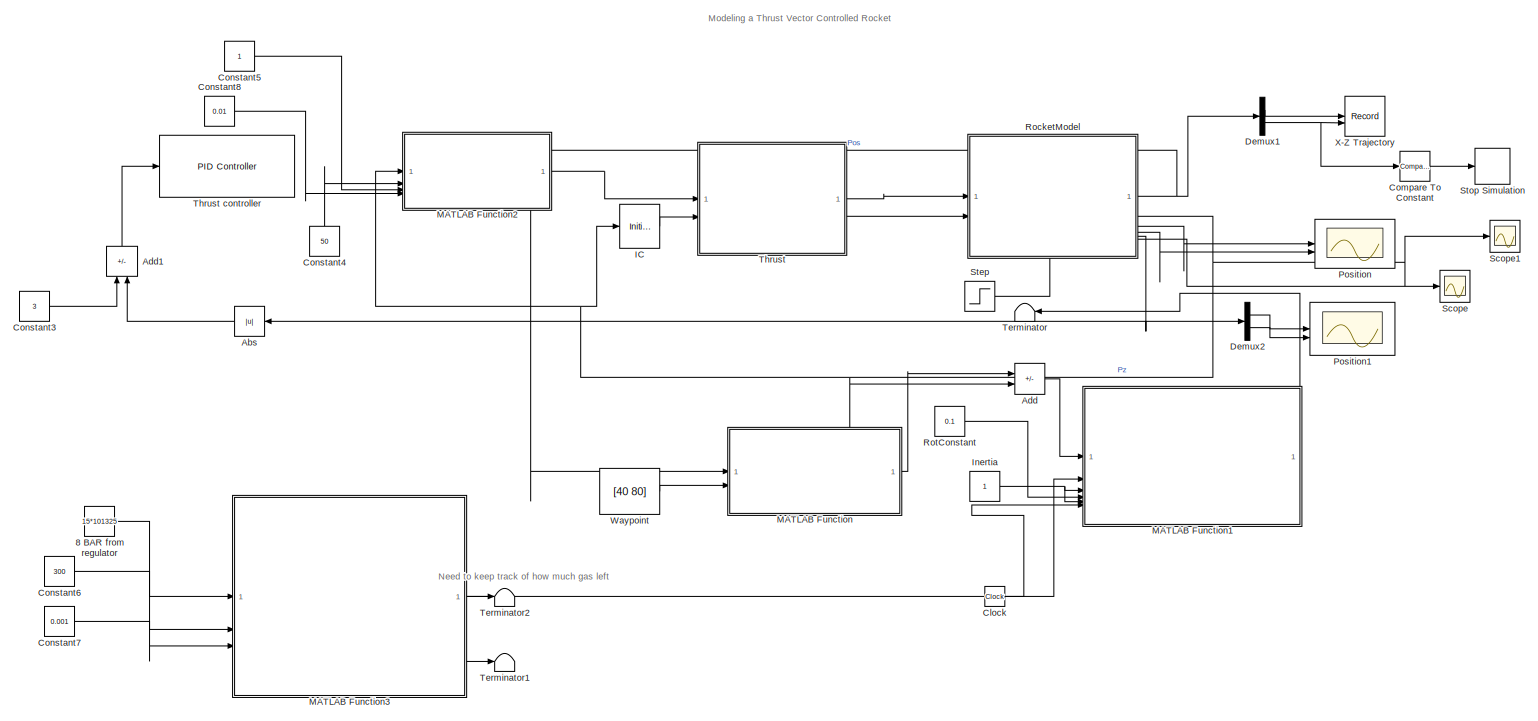
[diagram: root canvas - part 1/2, top center region]
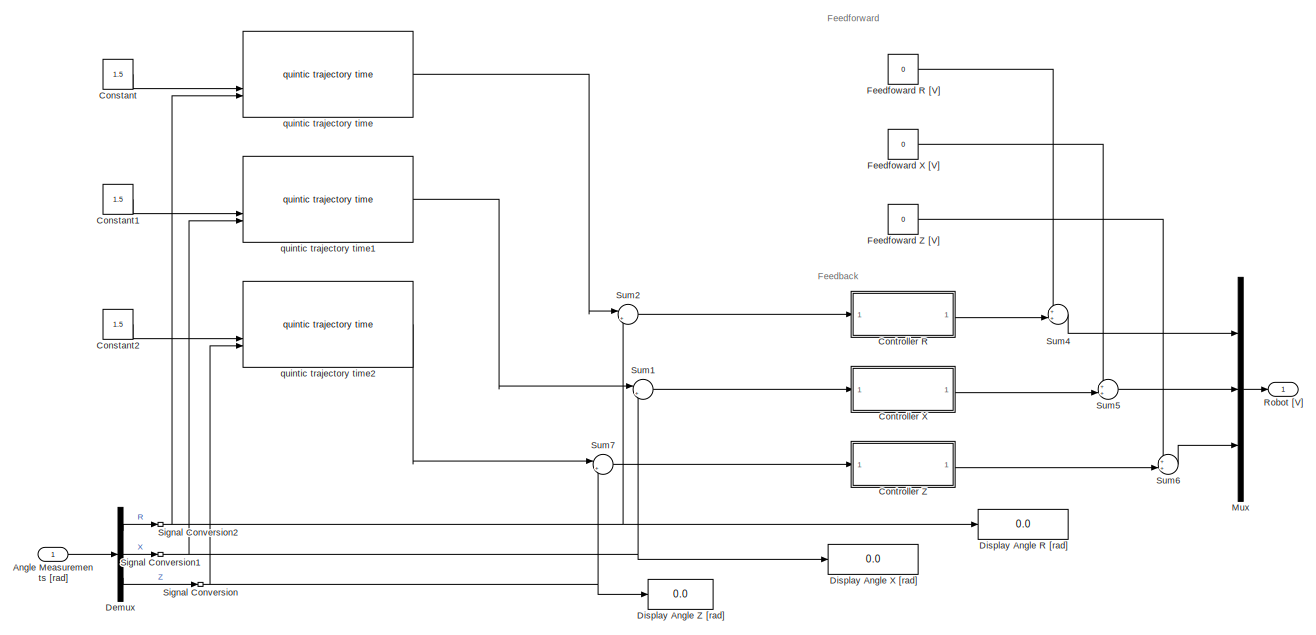
[diagram: root canvas - part 2/2, bottom right region]
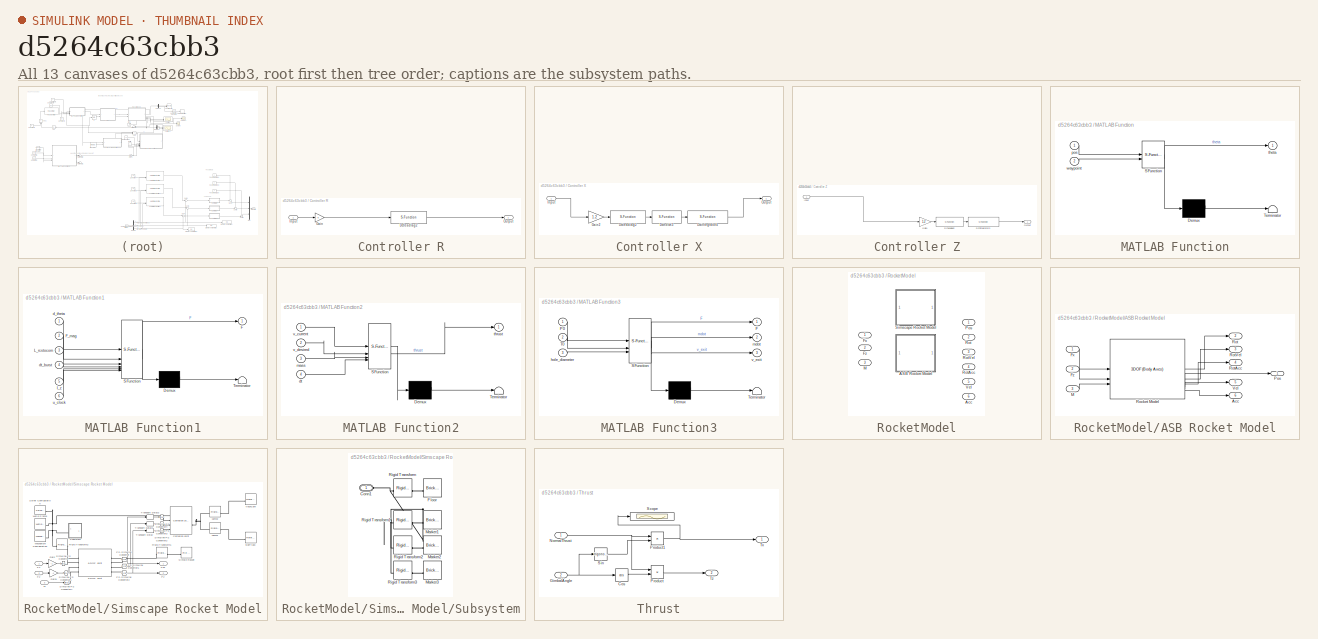
[diagram: thumbnail index - all 13 canvases of the model, root first then tree order]
MODEL slx_d5264c63cbb3
KIND model
CONFIG AbsTol = auto
CONFIG EnableMultiTasking = off
CONFIG FixedStep = auto
CONFIG MaxStep = auto
CONFIG MinStep = auto
CONFIG PostLoadFcn = VSS_MODE = 0;
CONFIG RelTol = 1e-3
CONFIG SampleTimeConstraint = Unconstrained
CONFIG SolverName = ode45
CONFIG StartTime = 0.0
CONFIG StopTime = 15
BLOCK [Constant] 8 BAR from regulator
  Value = 15*101325
BLOCK [Abs] Abs
  Commented = on
  NameLocation = top
  SaturateOnIntegerOverflow = off
BLOCK [Sum] Add
  IconShape = rectangular
  Inputs = +-
BLOCK [Sum] Add1
  Commented = on
  IconShape = rectangular
  Inputs = +-
  NameLocation = right
BLOCK [Inport] Angle Measurements [rad]
BLOCK [Clock] Clock
BLOCK [Reference] Compare To Constant  REF=simulink/Logic and Bit
Operations/Compare
To Constant
  SourceBlock = simulink/Logic and Bit\nOperations/Compare\nTo Constant
  SourceType = Compare To Constant
BLOCK [Constant] Constant
  Commented = on
  Value = 1.5
BLOCK [Constant] Constant1
  Commented = on
  Value = 1.5
BLOCK [Constant] Constant2
  Commented = on
  Value = 1.5
BLOCK [Constant] Constant3
  Commented = on
  Value = 3
BLOCK [Constant] Constant4
  NameLocation = right
  Value = 50
BLOCK [Constant] Constant5
BLOCK [Constant] Constant6
  Value = 300
BLOCK [Constant] Constant7
  Value = 0.001
BLOCK [Constant] Constant8
  Value = 0.01
BLOCK [SubSystem] Controller R
  Commented = on
BLOCK [S-Function] Controller R/Dctleadlag2
  EnableBusSupport = off
  FunctionName = dleadlag
  Parameters = f_num, f_den, 0.001
  SFcnIsStateOwnerBlock = off
  SFunctionDeploymentMode = off
BLOCK [Gain] Controller R/Gain
  Gain = 5
BLOCK [Inport] Controller R/Input
BLOCK [Outport] Controller R/Output
BLOCK [SubSystem] Controller X
  Commented = on
BLOCK [S-Function] Controller X/Dctintegrator4
  EnableBusSupport = off
  FunctionName = dweakint
  Parameters = f_num, 0.001
  SFcnIsStateOwnerBlock = off
  SFunctionDeploymentMode = off
BLOCK [S-Function] Controller X/Dctleadlag2
  EnableBusSupport = off
  FunctionName = dleadlag
  Parameters = f_num, f_den, 0.001
  SFcnIsStateOwnerBlock = off
  SFunctionDeploymentMode = off
BLOCK [S-Function] Controller X/Dctnotch3
  EnableBusSupport = off
  FunctionName = dnotch
  Parameters = f_num, b_num, f_den, b_den, 0.001
  SFcnIsStateOwnerBlock = off
  SFunctionDeploymentMode = off
BLOCK [Gain] Controller X/Gain2
  Gain = 1.2
BLOCK [Inport] Controller X/Input
BLOCK [Outport] Controller X/Output
BLOCK [SubSystem] Controller Z
  Commented = on
BLOCK [S-Function] Controller Z/Dctintegrator3
  EnableBusSupport = off
  FunctionName = dweakint
  Parameters = f_num, 0.001
  SFcnIsStateOwnerBlock = off
  SFunctionDeploymentMode = off
BLOCK [S-Function] Controller Z/Dctleadlag2
  EnableBusSupport = off
  FunctionName = dleadlag
  Parameters = f_num, f_den, 0.001
  SFcnIsStateOwnerBlock = off
  SFunctionDeploymentMode = off
BLOCK [Gain] Controller Z/Gain1
  Gain = 1.2
BLOCK [Inport] Controller Z/Input
BLOCK [Outport] Controller Z/Output
BLOCK [Demux] Demux
  Commented = on
  Outputs = 3
BLOCK [Demux] Demux1
  Outputs = 2
BLOCK [Demux] Demux2
  Outputs = 2
BLOCK [Display] Display Angle R [rad]
  Commented = on
  Decimation = 1
BLOCK [Display] Display Angle X [rad]
  Commented = on
  Decimation = 1
BLOCK [Display] Display Angle Z [rad]
  Commented = on
  Decimation = 1
BLOCK [Constant] Feedfoward R [V]
  Commented = on
  Value = 0
BLOCK [Constant] Feedfoward X [V]
  Commented = on
  Value = 0
BLOCK [Constant] Feedfoward Z [V]
  Commented = on
  Value = 0
BLOCK [InitialCondition] IC
  Value = pi/2
BLOCK [Constant] Inertia
BLOCK [SubSystem] MATLAB Function
  ErrorFcn = Stateflow.Translate.translate
  PermitHierarchicalResolution = ExplicitOnly
  SFBlockType = MATLAB Function
  TreatAsAtomicUnit = on
BLOCK [Demux] MATLAB Function/ Demux 
  Outputs = 1
BLOCK [S-Function] MATLAB Function/ SFunction 
  EnableBusSupport = on
  FunctionName = sf_sfun
  PortCounts = [2 2]
  SFcnIsStateOwnerBlock = off
  SFunctionDeploymentMode = off
  Tag = Stateflow S-Function 2
BLOCK [Terminator] MATLAB Function/ Terminator 
BLOCK [Inport] MATLAB Function/pos
BLOCK [Outport] MATLAB Function/theta
BLOCK [Inport] MATLAB Function/waypoint
  Port = 2
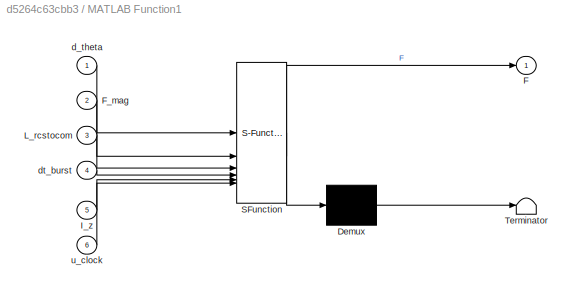
BLOCK [SubSystem] MATLAB Function1
  ErrorFcn = Stateflow.Translate.translate
  PermitHierarchicalResolution = ExplicitOnly
  SFBlockType = MATLAB Function
  TreatAsAtomicUnit = on
BLOCK [Demux] MATLAB Function1/ Demux 
  Outputs = 1
BLOCK [S-Function] MATLAB Function1/ SFunction 
  EnableBusSupport = on
  FunctionName = sf_sfun
  PortCounts = [6 2]
  SFcnIsStateOwnerBlock = off
  SFunctionDeploymentMode = off
  Tag = Stateflow S-Function 1
BLOCK [Terminator] MATLAB Function1/ Terminator 
BLOCK [Outport] MATLAB Function1/F
BLOCK [Inport] MATLAB Function1/F_mag
  Port = 2
BLOCK [Inport] MATLAB Function1/I_z
  Port = 5
BLOCK [Inport] MATLAB Function1/L_rcstocom
  Port = 3
BLOCK [Inport] MATLAB Function1/d_theta
BLOCK [Inport] MATLAB Function1/dt_burst
  Port = 4
BLOCK [Inport] MATLAB Function1/u_clock
  Port = 6
BLOCK [SubSystem] MATLAB Function2
  ErrorFcn = Stateflow.Translate.translate
  PermitHierarchicalResolution = ExplicitOnly
  SFBlockType = MATLAB Function
  TreatAsAtomicUnit = on
BLOCK [Demux] MATLAB Function2/ Demux 
  Outputs = 1
BLOCK [S-Function] MATLAB Function2/ SFunction 
  EnableBusSupport = on
  FunctionName = sf_sfun
  PortCounts = [4 2]
  SFcnIsStateOwnerBlock = off
  SFunctionDeploymentMode = off
  Tag = Stateflow S-Function 3
BLOCK [Terminator] MATLAB Function2/ Terminator 
BLOCK [Inport] MATLAB Function2/dt
  Port = 4
BLOCK [Inport] MATLAB Function2/mass
  Port = 3
BLOCK [Outport] MATLAB Function2/thrust
BLOCK [Inport] MATLAB Function2/v_current
BLOCK [Inport] MATLAB Function2/v_desired
  Port = 2
BLOCK [SubSystem] MATLAB Function3
  ErrorFcn = Stateflow.Translate.translate
  PermitHierarchicalResolution = ExplicitOnly
  SFBlockType = MATLAB Function
  TreatAsAtomicUnit = on
BLOCK [Demux] MATLAB Function3/ Demux 
  Outputs = 1
BLOCK [S-Function] MATLAB Function3/ SFunction 
  EnableBusSupport = on
  FunctionName = sf_sfun
  PortCounts = [3 4]
  SFcnIsStateOwnerBlock = off
  SFunctionDeploymentMode = off
  Tag = Stateflow S-Function 4
BLOCK [Terminator] MATLAB Function3/ Terminator 
BLOCK [Outport] MATLAB Function3/F
BLOCK [Inport] MATLAB Function3/P0
BLOCK [Inport] MATLAB Function3/T0
  Port = 2
BLOCK [Inport] MATLAB Function3/hole_diameter
  Port = 3
BLOCK [Outport] MATLAB Function3/mdot
  Port = 2
BLOCK [Outport] MATLAB Function3/v_exit
  Port = 3
BLOCK [Mux] Mux
  Commented = on
  DisplayOption = bar
  Inputs = 3
BLOCK [Scope] Position
  Floating = off
  NumInputPorts = 2
  ScopeSpecificationString = Simulink.scopes.TimeScopeBlockCfg('CurrentConfiguration', extmgr.ConfigurationSet(extmgr.Configuration('Core','General UI',true),extmgr.Configuration('Core','Source UI',true),extmgr.Configuration('Sources','WiredSimulink',true,'DataLoggingVariableName','ScopeData2'),extmgr.Configuration('Visuals','Time Domain',true,'SerializedDisplays',{struct('MinYLimReal','-0.0001','MaxYLimReal','0.00008','YLabe...<+2278ch>
BLOCK [Scope] Position1
  Floating = off
  NumInputPorts = 2
  ScopeSpecificationString = Simulink.scopes.TimeScopeBlockCfg('CurrentConfiguration', extmgr.ConfigurationSet(extmgr.Configuration('Core','General UI',true),extmgr.Configuration('Core','Source UI',true),extmgr.Configuration('Sources','WiredSimulink',true,'DataLoggingVariableName','ScopeData1'),extmgr.Configuration('Visuals','Time Domain',true,'SerializedDisplays',{struct('MinYLimReal','3.17506','MaxYLimReal','20.52335','YLab...<+2290ch>
BLOCK [Outport] Robot [V]
BLOCK [SubSystem] RocketModel
  PortSchema = {"entries":[{"content":{"sides":[{"content":{"connectorIds":["In1","In2"]},"type":"ConnectorPlacement.EquallySpacedRectSide","uuid":"39ccef9b-7d5c-4c88-8027-880c81cd9dcd"},{"content":{"connectorIds":["Out1","Out2","Out3","Out4","Out5","Out6"],"side":"RIGHT"},"type":"ConnectorPlacement.EquallySpacedRectSide","uuid":"1b4ade83-027d-4360-a7ba-fa0c14802a25"},{"content":{"side":"TOP"},"type":"ConnectorP...<+412ch>
  Variant = on
BLOCK [SubSystem] RocketModel/ASB Rocket Model
  VariantControl = VSS_MODE == 0
BLOCK [Outport] RocketModel/ASB Rocket Model/Acc
  Port = 6
BLOCK [Inport] RocketModel/ASB Rocket Model/Fx
BLOCK [Inport] RocketModel/ASB Rocket Model/Fz
  Port = 2
BLOCK [Inport] RocketModel/ASB Rocket Model/M
  Port = 3
BLOCK [Outport] RocketModel/ASB Rocket Model/Pos
BLOCK [Reference] RocketModel/ASB Rocket Model/Rocket Model  REF=shared3dof/3DOF (Body Axes)
  SourceBlock = shared3dof/3DOF (Body Axes)
  SourceType = 3DOF EoM
BLOCK [Outport] RocketModel/ASB Rocket Model/Rot
  Port = 2
BLOCK [Outport] RocketModel/ASB Rocket Model/RotAcc
  Port = 4
BLOCK [Outport] RocketModel/ASB Rocket Model/RotVel
  Port = 3
BLOCK [Outport] RocketModel/ASB Rocket Model/Vel
  Port = 5
BLOCK [Outport] RocketModel/Acc
  Port = 6
BLOCK [Inport] RocketModel/Fx 
BLOCK [Inport] RocketModel/Fz
  Port = 2
BLOCK [Inport] RocketModel/M
  Port = 3
BLOCK [Outport] RocketModel/Pos
BLOCK [Outport] RocketModel/Rot
  Port = 2
BLOCK [Outport] RocketModel/RotAcc
  Port = 4
BLOCK [Outport] RocketModel/RotVel
  Port = 3
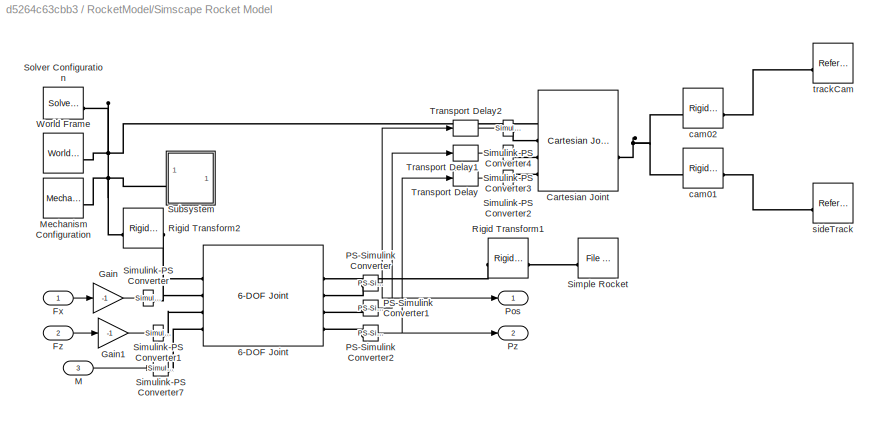
BLOCK [SubSystem] RocketModel/Simscape Rocket Model
  VariantControl = VSS_MODE == 1
BLOCK [Reference] RocketModel/Simscape Rocket Model/6-DOF Joint  REF=sm_lib/Joints/6-DOF Joint
  SourceBlock = sm_lib/Joints/6-DOF Joint
  SourceType = 6-DOF Joint
BLOCK [Reference] RocketModel/Simscape Rocket Model/Cartesian Joint  REF=sm_lib/Joints/Cartesian
Joint
  SourceBlock = sm_lib/Joints/Cartesian\nJoint
  SourceType = Cartesian\nJoint
BLOCK [Inport] RocketModel/Simscape Rocket Model/Fx
BLOCK [Inport] RocketModel/Simscape Rocket Model/Fz
  Port = 2
BLOCK [Gain] RocketModel/Simscape Rocket Model/Gain
  Gain = -1
BLOCK [Gain] RocketModel/Simscape Rocket Model/Gain1
  Gain = -1
BLOCK [Inport] RocketModel/Simscape Rocket Model/M
  Port = 3
BLOCK [Reference] RocketModel/Simscape Rocket Model/Mechanism Configuration  REF=sm_lib/Utilities/Mechanism
Configuration
  SourceBlock = sm_lib/Utilities/Mechanism\nConfiguration
  SourceType = Mechanism\nConfiguration
BLOCK [Reference] RocketModel/Simscape Rocket Model/PS-Simulink Converter  REF=nesl_utility/PS-Simulink
Converter
  SourceBlock = nesl_utility/PS-Simulink\nConverter
  SourceType = PS-Simulink\nConverter
BLOCK [Reference] RocketModel/Simscape Rocket Model/PS-Simulink Converter1  REF=nesl_utility/PS-Simulink
Converter
  SourceBlock = nesl_utility/PS-Simulink\nConverter
  SourceType = PS-Simulink\nConverter
BLOCK [Reference] RocketModel/Simscape Rocket Model/PS-Simulink Converter2  REF=nesl_utility/PS-Simulink
Converter
  SourceBlock = nesl_utility/PS-Simulink\nConverter
  SourceType = PS-Simulink\nConverter
BLOCK [Outport] RocketModel/Simscape Rocket Model/Pos
BLOCK [Outport] RocketModel/Simscape Rocket Model/Pz
  Port = 2
BLOCK [Reference] RocketModel/Simscape Rocket Model/Rigid Transform1  REF=sm_lib/Frames and
Transforms/Rigid
Transform
  NameLocation = top
  SourceBlock = sm_lib/Frames and\nTransforms/Rigid\nTransform
  SourceType = Rigid\nTransform
BLOCK [Reference] RocketModel/Simscape Rocket Model/Rigid Transform2  REF=sm_lib/Frames and
Transforms/Rigid
Transform
  NameLocation = top
  SourceBlock = sm_lib/Frames and\nTransforms/Rigid\nTransform
  SourceType = Rigid\nTransform
BLOCK [Reference] RocketModel/Simscape Rocket Model/Simple Rocket  REF=sm_lib/Body Elements/File Solid
  NameLocation = top
  SourceBlock = sm_lib/Body Elements/File Solid
  SourceType = File Solid
BLOCK [Reference] RocketModel/Simscape Rocket Model/Simulink-PS Converter  REF=nesl_utility/Simulink-PS
Converter
  SourceBlock = nesl_utility/Simulink-PS\nConverter
  SourceType = Simulink-PS\nConverter
BLOCK [Reference] RocketModel/Simscape Rocket Model/Simulink-PS Converter1  REF=nesl_utility/Simulink-PS
Converter
  SourceBlock = nesl_utility/Simulink-PS\nConverter
  SourceType = Simulink-PS\nConverter
BLOCK [Reference] RocketModel/Simscape Rocket Model/Simulink-PS Converter2  REF=nesl_utility/Simulink-PS
Converter
  SourceBlock = nesl_utility/Simulink-PS\nConverter
  SourceType = Simulink-PS\nConverter
BLOCK [Reference] RocketModel/Simscape Rocket Model/Simulink-PS Converter3  REF=nesl_utility/Simulink-PS
Converter
  SourceBlock = nesl_utility/Simulink-PS\nConverter
  SourceType = Simulink-PS\nConverter
BLOCK [Reference] RocketModel/Simscape Rocket Model/Simulink-PS Converter4  REF=nesl_utility/Simulink-PS
Converter
  SourceBlock = nesl_utility/Simulink-PS\nConverter
  SourceType = Simulink-PS\nConverter
BLOCK [Reference] RocketModel/Simscape Rocket Model/Simulink-PS Converter7  REF=nesl_utility/Simulink-PS
Converter
  SourceBlock = nesl_utility/Simulink-PS\nConverter
  SourceType = Simulink-PS\nConverter
BLOCK [Reference] RocketModel/Simscape Rocket Model/Solver Configuration  REF=nesl_utility/Solver
Configuration
  SourceBlock = nesl_utility/Solver\nConfiguration
  SourceType = Solver\nConfiguration
BLOCK [SubSystem] RocketModel/Simscape Rocket Model/Subsystem
BLOCK [PMIOPort] RocketModel/Simscape Rocket Model/Subsystem/Conn1
  Side = Left
BLOCK [Reference] RocketModel/Simscape Rocket Model/Subsystem/Floor  REF=sm_lib/Body Elements/Brick Solid
  NameLocation = top
  SourceBlock = sm_lib/Body Elements/Brick Solid
  SourceType = Brick Solid
BLOCK [Reference] RocketModel/Simscape Rocket Model/Subsystem/Marker1  REF=sm_lib/Body Elements/Brick Solid
  NameLocation = top
  SourceBlock = sm_lib/Body Elements/Brick Solid
  SourceType = Brick Solid
BLOCK [Reference] RocketModel/Simscape Rocket Model/Subsystem/Marker2  REF=sm_lib/Body Elements/Brick Solid
  NameLocation = top
  SourceBlock = sm_lib/Body Elements/Brick Solid
  SourceType = Brick Solid
BLOCK [Reference] RocketModel/Simscape Rocket Model/Subsystem/Marker3  REF=sm_lib/Body Elements/Brick Solid
  NameLocation = top
  SourceBlock = sm_lib/Body Elements/Brick Solid
  SourceType = Brick Solid
BLOCK [Reference] RocketModel/Simscape Rocket Model/Subsystem/Rigid Transform  REF=sm_lib/Frames and
Transforms/Rigid
Transform
  SourceBlock = sm_lib/Frames and\nTransforms/Rigid\nTransform
  SourceType = Rigid\nTransform
BLOCK [Reference] RocketModel/Simscape Rocket Model/Subsystem/Rigid Transform1  REF=sm_lib/Frames and
Transforms/Rigid
Transform
  SourceBlock = sm_lib/Frames and\nTransforms/Rigid\nTransform
  SourceType = Rigid\nTransform
BLOCK [Reference] RocketModel/Simscape Rocket Model/Subsystem/Rigid Transform2  REF=sm_lib/Frames and
Transforms/Rigid
Transform
  SourceBlock = sm_lib/Frames and\nTransforms/Rigid\nTransform
  SourceType = Rigid\nTransform
BLOCK [Reference] RocketModel/Simscape Rocket Model/Subsystem/Rigid Transform3  REF=sm_lib/Frames and
Transforms/Rigid
Transform
  SourceBlock = sm_lib/Frames and\nTransforms/Rigid\nTransform
  SourceType = Rigid\nTransform
BLOCK [TransportDelay] RocketModel/Simscape Rocket Model/Transport Delay
  BufferSize = 100
  DelayTime = 0.01
BLOCK [TransportDelay] RocketModel/Simscape Rocket Model/Transport Delay1
  BufferSize = 100
  DelayTime = 0.01
BLOCK [TransportDelay] RocketModel/Simscape Rocket Model/Transport Delay2
  BufferSize = 100
  DelayTime = 0.01
BLOCK [Reference] RocketModel/Simscape Rocket Model/World Frame  REF=sm_lib/Frames and
Transforms/World Frame
  SourceBlock = sm_lib/Frames and\nTransforms/World Frame
  SourceType = World Frame
BLOCK [Reference] RocketModel/Simscape Rocket Model/cam01  REF=sm_lib/Frames and
Transforms/Rigid
Transform
  SourceBlock = sm_lib/Frames and\nTransforms/Rigid\nTransform
  SourceType = Rigid\nTransform
BLOCK [Reference] RocketModel/Simscape Rocket Model/cam02  REF=sm_lib/Frames and
Transforms/Rigid
Transform
  SourceBlock = sm_lib/Frames and\nTransforms/Rigid\nTransform
  SourceType = Rigid\nTransform
BLOCK [Reference] RocketModel/Simscape Rocket Model/sideTrack  REF=sm_lib/Frames and
Transforms/Reference
Frame
  SourceBlock = sm_lib/Frames and\nTransforms/Reference\nFrame
  SourceType = Reference\nFrame
BLOCK [Reference] RocketModel/Simscape Rocket Model/trackCam  REF=sm_lib/Frames and
Transforms/Reference
Frame
  SourceBlock = sm_lib/Frames and\nTransforms/Reference\nFrame
  SourceType = Reference\nFrame
BLOCK [Outport] RocketModel/Vel
  Port = 5
BLOCK [Constant] RotConstant
  Value = 0.1
BLOCK [Scope] Scope
  Floating = off
  NumInputPorts = 1
  ScopeSpecificationString = Simulink.scopes.TimeScopeBlockCfg('CurrentConfiguration', extmgr.ConfigurationSet(extmgr.Configuration('Core','General UI',true),extmgr.Configuration('Core','Source UI',true),extmgr.Configuration('Sources','WiredSimulink',true,'DataLoggingVariableName','ScopeData2'),extmgr.Configuration('Visuals','Time Domain',true,'SerializedDisplays',{struct('MinYLimReal','-12.47067','MaxYLimReal','24.33371','YL...<+1506ch>
BLOCK [Scope] Scope1
  Floating = off
  NumInputPorts = 1
  ScopeSpecificationString = Simulink.scopes.TimeScopeBlockCfg('CurrentConfiguration', extmgr.ConfigurationSet(extmgr.Configuration('Core','General UI',true),extmgr.Configuration('Core','Source UI',true),extmgr.Configuration('Sources','WiredSimulink',true,'DataLoggingVariableName','ScopeData1'),extmgr.Configuration('Visuals','Time Domain',true,'SerializedDisplays',{struct('MinYLimReal','-3.88981','MaxYLimReal','3.89972','YLab...<+1785ch>
BLOCK [SignalConversion] Signal Conversion
  Commented = on
  OverrideOpt = off
BLOCK [SignalConversion] Signal Conversion1
  Commented = on
  OverrideOpt = off
BLOCK [SignalConversion] Signal Conversion2
  Commented = on
  OverrideOpt = off
BLOCK [Step] Step
  After = -1
  SampleTime = 0.1
BLOCK [Stop] Stop Simulation
BLOCK [Sum] Sum1
  Commented = on
  Inputs = |+-
BLOCK [Sum] Sum2
  Commented = on
  Inputs = |+-
BLOCK [Sum] Sum4
  Commented = on
  InputSameDT = on
  Inputs = ++|
  OutDataTypeStr = Inherit: Same as first input
  SaturateOnIntegerOverflow = on
BLOCK [Sum] Sum5
  Commented = on
  InputSameDT = on
  Inputs = ++|
  OutDataTypeStr = Inherit: Same as first input
  SaturateOnIntegerOverflow = on
BLOCK [Sum] Sum6
  Commented = on
  InputSameDT = on
  Inputs = ++|
  OutDataTypeStr = Inherit: Same as first input
  SaturateOnIntegerOverflow = on
BLOCK [Sum] Sum7
  Commented = on
  Inputs = |+-
BLOCK [Terminator] Terminator
  NameLocation = top
BLOCK [Terminator] Terminator1
BLOCK [Terminator] Terminator2
BLOCK [SubSystem] Thrust
BLOCK [Reference] Thrust controller  REF=slpidlib/PID Controller
  Commented = on
  LibrarySourceBlock = simulink/Continuous/PID Controller
  SourceBlock = slpidlib/PID Controller
  SourceType = PID 1dof
BLOCK [Trigonometry] Thrust/Cos
  Operator = cos
BLOCK [Inport] Thrust/GimbalAngle
  Port = 2
BLOCK [Inport] Thrust/NormalThrust
BLOCK [Product] Thrust/Product
  RndMeth = Zero
BLOCK [Product] Thrust/Product1
  RndMeth = Zero
BLOCK [Scope] Thrust/Scope
  Floating = off
  NumInputPorts = 1
  ScopeSpecificationString = Simulink.scopes.TimeScopeBlockCfg('CurrentConfiguration', extmgr.ConfigurationSet(extmgr.Configuration('Core','General UI',true),extmgr.Configuration('Core','Source UI',true),extmgr.Configuration('Sources','WiredSimulink',true,'DataLoggingVariableName','ScopeData2'),extmgr.Configuration('Visuals','Time Domain',true,'SerializedDisplays',{struct('MinYLimReal','-24.99992','MaxYLimReal','24.99999','YL...<+1520ch>
BLOCK [Trigonometry] Thrust/Sin
BLOCK [Outport] Thrust/Tx
BLOCK [Outport] Thrust/Tz
  Port = 2
BLOCK [Constant] Waypoint
  Value = [40 80]
BLOCK [Record] X-Z Trajectory
  CompatibilityTag = XY
  FileSettingsInternal = {"entries":[{"content":{"excelSettings":{"content":{},"type":"Streamout.ExcelSettings"}},"type":"Streamout.FileSettingStorage","uuid":""}],"packageUris":["http:\/\/schema.mathworks.com\/mf0\/streamout_blocks\/R2020a"],"version":"1.0"}
  Layout = [1 1]
  SignalsInternal = {"entries":[{"content":{"signals":[{"content":{"blockPath":[],"dimensions":[1],"domain":"","lineColor":"#a2142f","plots":[ 1 ],"port":1,"sid":[""],"signalID":1,"signalName":"Demux1:1"},"type":"RecordBlkView.Signal","uuid":""},{"content":{"blockPath":[],"dimensions":[1],"domain":"","lineColor":"#139fff","plots":[ 1 ],"port":2,"sid":[""],"signalID":2,"signalName":"Demux1:2"},"type":"RecordBlkView.Si...<+162ch>
  VisualizationBindings = {"xyplotplugin":{"info":[{"series":[{"bindingParametersList":[{"parameter":"X-Axis","signalID":1,"signalName":"Demux1:1"},{"parameter":"Y-Axis","signalID":2,"signalName":"Demux1:2"}],"seriesID":0}],"subplotID":1}]}}
  st = -1
BLOCK [Reference] quintic trajectory time  REF=Quintic_Polynomial_Trajectory_Library/quintic trajectory time
  Commented = on
  SourceBlock = Quintic_Polynomial_Trajectory_Library/quintic trajectory time
  SourceProductName = Robotarm library
BLOCK [Reference] quintic trajectory time1  REF=Quintic_Polynomial_Trajectory_Library/quintic trajectory time
  Commented = on
  SourceBlock = Quintic_Polynomial_Trajectory_Library/quintic trajectory time
  SourceProductName = Robotarm library
BLOCK [Reference] quintic trajectory time2  REF=Quintic_Polynomial_Trajectory_Library/quintic trajectory time
  Commented = on
  SourceBlock = Quintic_Polynomial_Trajectory_Library/quintic trajectory time
  SourceProductName = Robotarm library
ANNOTATION (root): Modeling a Thrust Vector Controlled Rocket
ANNOTATION (root): Feedback
ANNOTATION (root): Feedforward
ANNOTATION (root): Need to keep track of how much gas left
LINE 8 BAR from regulator:1 -> MATLAB Function3:1
LINE Abs:1 -> Add1:2
LINE Add1:1 -> Thrust controller:1
LINE Add:1 -> MATLAB Function1:1
LINE Angle Measurements [rad]:1 -> Demux:1
LINE Clock:1 -> MATLAB Function1:6
LINE Compare To Constant:1 -> Stop Simulation:1
LINE Constant1:1 -> quintic trajectory time1:2
LINE Constant2:1 -> quintic trajectory time2:2
LINE Constant3:1 -> Add1:1
LINE Constant4:1 -> MATLAB Function2:2
LINE Constant5:1 -> MATLAB Function2:3
LINE Constant6:1 -> MATLAB Function3:2
LINE Constant7:1 -> MATLAB Function3:3
LINE Constant8:1 -> MATLAB Function2:4
LINE Constant:1 -> quintic trajectory time:2
LINE Controller R/Dctleadlag2:1 -> Controller R/Output:1
LINE Controller R/Gain:1 -> Controller R/Dctleadlag2:1
LINE Controller R/Input:1 -> Controller R/Gain:1
LINE Controller R:1 -> Sum4:2
LINE Controller X/Dctintegrator4:1 -> Controller X/Output:1
LINE Controller X/Dctleadlag2:1 -> Controller X/Dctnotch3:1
LINE Controller X/Dctnotch3:1 -> Controller X/Dctintegrator4:1
LINE Controller X/Gain2:1 -> Controller X/Dctleadlag2:1
LINE Controller X/Input:1 -> Controller X/Gain2:1
LINE Controller X:1 -> Sum5:2
LINE Controller Z/Dctintegrator3:1 -> Controller Z/Output:1
LINE Controller Z/Dctleadlag2:1 -> Controller Z/Dctintegrator3:1
LINE Controller Z/Gain1:1 -> Controller Z/Dctleadlag2:1
LINE Controller Z/Input:1 -> Controller Z/Gain1:1
LINE Controller Z:1 -> Sum6:2
LINE Demux1:1 -> X-Z Trajectory:1
NET Demux1:2 -> Compare To Constant:1, X-Z Trajectory:2
LINE Demux2:1 -> Position1:1
LINE Demux2:2 -> Position1:2
LINE Demux:1 -> Signal Conversion2:1
LINE Demux:2 -> Signal Conversion1:1
LINE Demux:3 -> Signal Conversion:1
LINE Feedfoward R [V]:1 -> Sum4:1
LINE Feedfoward X [V]:1 -> Sum5:1
LINE Feedfoward Z [V]:1 -> Sum6:1
LINE IC:1 -> Thrust:2
NET Inertia:1 -> MATLAB Function1:3, MATLAB Function1:5
LINE MATLAB Function1:1 -> Terminator:1
LINE MATLAB Function2:1 -> Thrust:1
LINE MATLAB Function3:1 -> MATLAB Function1:2
LINE MATLAB Function3:2 -> Terminator2:1
LINE MATLAB Function3:3 -> Terminator1:1
LINE MATLAB Function:1 -> Add:1
LINE Mux:1 -> Robot [V]:1
LINE RocketModel/ASB Rocket Model/Fx:1 -> RocketModel/ASB Rocket Model/Rocket Model:1
LINE RocketModel/ASB Rocket Model/Fz:1 -> RocketModel/ASB Rocket Model/Rocket Model:2
LINE RocketModel/ASB Rocket Model/M:1 -> RocketModel/ASB Rocket Model/Rocket Model:3
LINE RocketModel/ASB Rocket Model/Rocket Model:1 -> RocketModel/ASB Rocket Model/Rot:1
LINE RocketModel/ASB Rocket Model/Rocket Model:2 -> RocketModel/ASB Rocket Model/RotVel:1
LINE RocketModel/ASB Rocket Model/Rocket Model:3 -> RocketModel/ASB Rocket Model/RotAcc:1
LINE RocketModel/ASB Rocket Model/Rocket Model:4 -> RocketModel/ASB Rocket Model/Pos:1
LINE RocketModel/ASB Rocket Model/Rocket Model:5 -> RocketModel/ASB Rocket Model/Vel:1
LINE RocketModel/ASB Rocket Model/Rocket Model:6 -> RocketModel/ASB Rocket Model/Acc:1
LINE RocketModel/Simscape Rocket Model/Fx:1 -> RocketModel/Simscape Rocket Model/Gain:1
LINE RocketModel/Simscape Rocket Model/Fz:1 -> RocketModel/Simscape Rocket Model/Gain1:1
LINE RocketModel/Simscape Rocket Model/Gain1:1 -> RocketModel/Simscape Rocket Model/Simulink-PS Converter1:1
LINE RocketModel/Simscape Rocket Model/Gain:1 -> RocketModel/Simscape Rocket Model/Simulink-PS Converter:1
LINE RocketModel/Simscape Rocket Model/M:1 -> RocketModel/Simscape Rocket Model/Simulink-PS Converter7:1
LINE RocketModel/Simscape Rocket Model/PS-Simulink Converter1:1 -> RocketModel/Simscape Rocket Model/Transport Delay1:1
NET RocketModel/Simscape Rocket Model/PS-Simulink Converter2:1 -> RocketModel/Simscape Rocket Model/Pz:1, RocketModel/Simscape Rocket Model/Transport Delay:1
NET RocketModel/Simscape Rocket Model/PS-Simulink Converter:1 -> RocketModel/Simscape Rocket Model/Pos:1, RocketModel/Simscape Rocket Model/Transport Delay2:1
LINE RocketModel/Simscape Rocket Model/Transport Delay1:1 -> RocketModel/Simscape Rocket Model/Simulink-PS Converter3:1
LINE RocketModel/Simscape Rocket Model/Transport Delay2:1 -> RocketModel/Simscape Rocket Model/Simulink-PS Converter4:1
LINE RocketModel/Simscape Rocket Model/Transport Delay:1 -> RocketModel/Simscape Rocket Model/Simulink-PS Converter2:1
NET RocketModel:1 -> Demux1:1, MATLAB Function:1
NET RocketModel:2 -> Add:2, IC:1, MATLAB Function2:1, Scope1:1
LINE RocketModel:3 -> Position:1
LINE RocketModel:4 -> Position:2
NET RocketModel:5 -> Abs:1, Demux2:1
LINE RocketModel:6 -> Scope:1
LINE RotConstant:1 -> MATLAB Function1:4
NET Signal Conversion1:1 -> Display Angle X [rad]:1, Sum1:2, quintic trajectory time1:3
NET Signal Conversion2:1 -> Display Angle R [rad]:1, Sum2:2, quintic trajectory time:3
NET Signal Conversion:1 -> Display Angle Z [rad]:1, Sum7:2, quintic trajectory time2:3
LINE Step:1 -> RocketModel:3
LINE Sum1:1 -> Controller X:1
LINE Sum2:1 -> Controller R:1
LINE Sum4:1 -> Mux:1
LINE Sum5:1 -> Mux:2
LINE Sum6:1 -> Mux:3
LINE Sum7:1 -> Controller Z:1
LINE Thrust/Cos:1 -> Thrust/Product:2
NET Thrust/GimbalAngle:1 -> Thrust/Cos:1, Thrust/Sin:1
NET Thrust/NormalThrust:1 -> Thrust/Product1:1, Thrust/Product:1
NET Thrust/Product1:1 -> Thrust/Scope:1, Thrust/Tx:1
LINE Thrust/Product:1 -> Thrust/Tz:1
LINE Thrust/Sin:1 -> Thrust/Product1:2
LINE Thrust:1 -> RocketModel:1
LINE Thrust:2 -> RocketModel:2
LINE Waypoint:1 -> MATLAB Function:2
LINE quintic trajectory time1:1 -> Sum1:1
LINE quintic trajectory time2:1 -> Sum7:1
LINE quintic trajectory time:1 -> Sum2:1
PLINE RocketModel/Simscape Rocket Model/6-DOF Joint:LConn1 -- RocketModel/Simscape Rocket Model/Rigid Transform2:LConn1
PLINE RocketModel/Simscape Rocket Model/6-DOF Joint:LConn2 -- RocketModel/Simscape Rocket Model/Simulink-PS Converter:RConn1
PLINE RocketModel/Simscape Rocket Model/6-DOF Joint:LConn3 -- RocketModel/Simscape Rocket Model/Simulink-PS Converter1:RConn1
PLINE RocketModel/Simscape Rocket Model/6-DOF Joint:LConn4 -- RocketModel/Simscape Rocket Model/Simulink-PS Converter7:RConn1
PLINE RocketModel/Simscape Rocket Model/6-DOF Joint:RConn1 -- RocketModel/Simscape Rocket Model/Rigid Transform1:RConn1
PLINE RocketModel/Simscape Rocket Model/6-DOF Joint:RConn2 -- RocketModel/Simscape Rocket Model/PS-Simulink Converter:LConn1
PLINE RocketModel/Simscape Rocket Model/6-DOF Joint:RConn3 -- RocketModel/Simscape Rocket Model/PS-Simulink Converter1:LConn1
PLINE RocketModel/Simscape Rocket Model/6-DOF Joint:RConn4 -- RocketModel/Simscape Rocket Model/PS-Simulink Converter2:LConn1
PNET net1: RocketModel/Simscape Rocket Model/Cartesian Joint:LConn1 -- RocketModel/Simscape Rocket Model/Mechanism Configuration:RConn1 -- RocketModel/Simscape Rocket Model/Rigid Transform2:RConn1 -- RocketModel/Simscape Rocket Model/Solver Configuration:RConn1 -- RocketModel/Simscape Rocket Model/Subsystem:LConn1 -- RocketModel/Simscape Rocket Model/World Frame:RConn1
PLINE RocketModel/Simscape Rocket Model/Cartesian Joint:LConn2 -- RocketModel/Simscape Rocket Model/Simulink-PS Converter4:RConn1
PLINE RocketModel/Simscape Rocket Model/Cartesian Joint:LConn3 -- RocketModel/Simscape Rocket Model/Simulink-PS Converter3:RConn1
PLINE RocketModel/Simscape Rocket Model/Cartesian Joint:LConn4 -- RocketModel/Simscape Rocket Model/Simulink-PS Converter2:RConn1
PNET net2: RocketModel/Simscape Rocket Model/Cartesian Joint:RConn1 -- RocketModel/Simscape Rocket Model/cam01:LConn1 -- RocketModel/Simscape Rocket Model/cam02:LConn1
PLINE RocketModel/Simscape Rocket Model/Rigid Transform1:LConn1 -- RocketModel/Simscape Rocket Model/Simple Rocket:RConn1
PNET net3: RocketModel/Simscape Rocket Model/Subsystem/Conn1:RConn1 -- RocketModel/Simscape Rocket Model/Subsystem/Rigid Transform1:LConn1 -- RocketModel/Simscape Rocket Model/Subsystem/Rigid Transform2:LConn1 -- RocketModel/Simscape Rocket Model/Subsystem/Rigid Transform3:LConn1 -- RocketModel/Simscape Rocket Model/Subsystem/Rigid Transform:LConn1
PLINE RocketModel/Simscape Rocket Model/Subsystem/Floor:RConn1 -- RocketModel/Simscape Rocket Model/Subsystem/Rigid Transform:RConn1
PLINE RocketModel/Simscape Rocket Model/Subsystem/Marker1:RConn1 -- RocketModel/Simscape Rocket Model/Subsystem/Rigid Transform1:RConn1
PLINE RocketModel/Simscape Rocket Model/Subsystem/Marker2:RConn1 -- RocketModel/Simscape Rocket Model/Subsystem/Rigid Transform2:RConn1
PLINE RocketModel/Simscape Rocket Model/Subsystem/Marker3:RConn1 -- RocketModel/Simscape Rocket Model/Subsystem/Rigid Transform3:RConn1
PLINE RocketModel/Simscape Rocket Model/cam01:RConn1 -- RocketModel/Simscape Rocket Model/sideTrack:RConn1
PLINE RocketModel/Simscape Rocket Model/cam02:RConn1 -- RocketModel/Simscape Rocket Model/trackCam:RConn1
note: NET lines group one-source signal fan-out (src -> all destinations, sorted); 1:1 wires keep LINE; PNET lines group multi-terminal physical nets as a canonical sorted terminal list (undirected conserving connections); 2-terminal nets keep the pairwise PLINE form
CHART MATLAB Function1 states=1 transitions=1
  STATE_LABEL 'eML_blk_kernel()'
  STATE_LABEL 'SCRIPT:\nfunction F = bangBangMomentWithInertia(d_theta, F_mag, L_rcstocom, dt_burst, I_z, u_clock)\n% Applies a bang-bang moment profile to rotate by d_theta radians.\n% Direction and polarity are derived from sign of d_theta.\n%\n% Inputs:\n%   d_theta   - Desired angular rotation (rad); positive = CCW, negative = CW\n%   M_mag     - Magnitude of moment applied (N·m)\n%   dt_burst  - Duration of each RC...<+1360ch>'
CHART MATLAB Function states=1 transitions=1
  STATE_LABEL 'eML_blk_kernel()'
  STATE_LABEL 'SCRIPT:\nfunction theta = compute_heading_angle(pos, waypoint)\n% Computes the angle (in radians) from current position to the waypoint,\n% and prints the distance between the two points.\n%\n% Inputs:\n%   pos      - [x, y] vector of current position\n%   waypoint - [x, y] vector of target waypoint position\n%\n% Output:\n%   theta    - angle in radians from pos to waypoint (measured from +x axis, counter-...<+268ch>'
CHART MATLAB Function2 states=1 transitions=1
  STATE_LABEL 'eML_blk_kernel()'
  STATE_LABEL 'SCRIPT:\nfunction thrust = velocityController2D(v_current, v_desired, mass, dt)\n%{\n#codegen\n\n% Ensure output is always defined\n\n% Declare persistent variables\npersistent int_error prev_error\nif isempty(int_error)\n    int_error = 0;\n    prev_error = 0;\nend\n\n% Compute current speed\nv_mag = norm(v_current);\n\n% Speed error\nerror = v_desired - v_mag;\n\n% Derivative and integral\nd_error = (error - prev_er...<+427ch>'
CHART MATLAB Function3 states=1 transitions=1
  STATE_LABEL 'eML_blk_kernel()'
  STATE_LABEL "SCRIPT:\nfunction [F, mdot, v_exit] = estimateRCSForce(P0, T0, hole_diameter)\n% Estimates thrust force for choked flow through a small orifice.\n%\n% Inputs:\n%   P0            - Upstream pressure [Pa] (absolute)\n%   T0            - Upstream temperature [K]\n%   hole_diameter - Diameter of nozzle/orifice [m]\n%   gas           - Gas type as string: 'CO2', 'Air', or 'N2'\n%\n% Outputs:\n%   F      - Estimat...<+812ch>"
CHART  states=0 transitions=0
CHART  states=0 transitions=0
CHART  states=0 transitions=0
CHART  states=0 transitions=0
